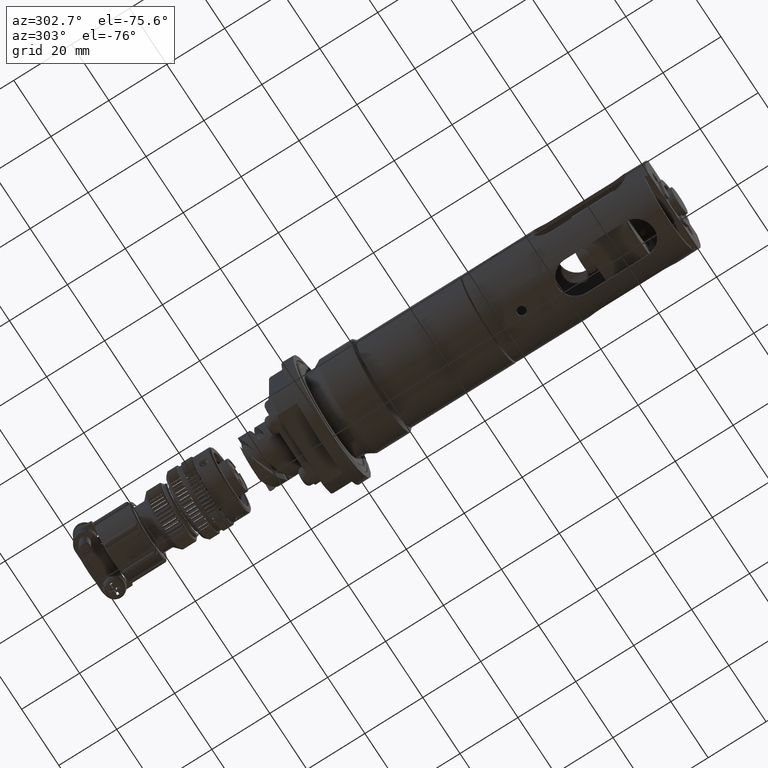
[diagram: clean part render]
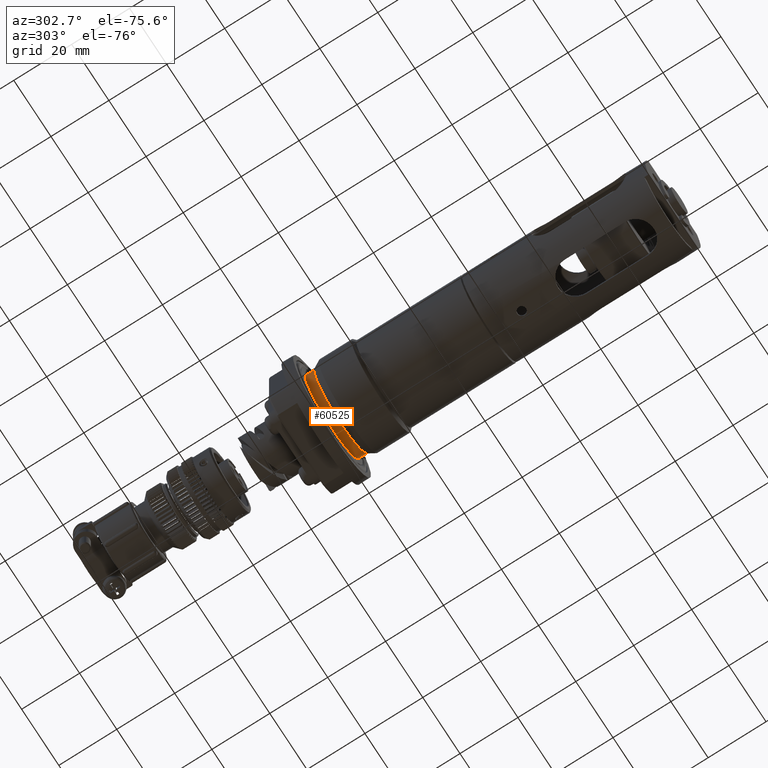
[diagram: same view with one face highlighted and labeled with its STEP entity id]
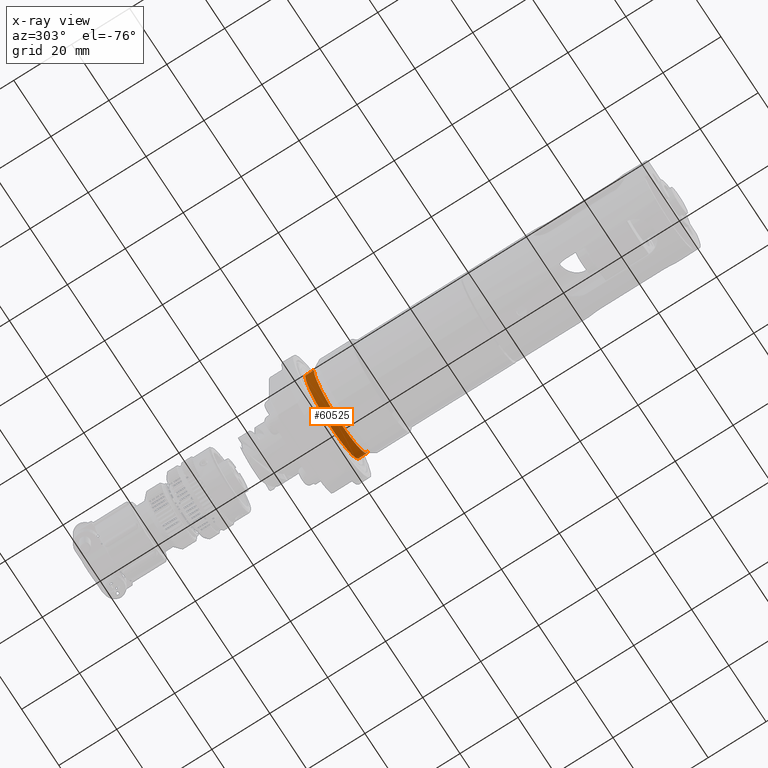
[diagram: x-ray of the same camera — body ghosted, the highlighted face saturated]
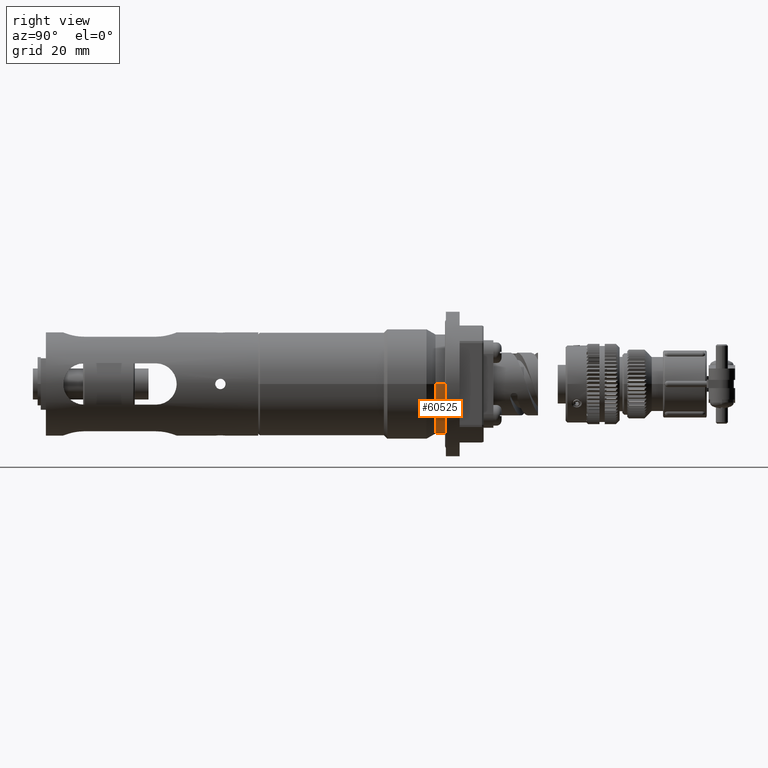
[diagram: same view with one face highlighted and labeled with its STEP entity id]
A machine part, auxiliary view. The second image highlights one B-rep face of the part: STEP entity #60525.
The next image is the same camera in x-ray: the body ghosted, the highlighted face saturated — about 0% of this face is hidden behind the body in this view.
A second angle (right view) of the same face is appended — the face is thin or edge-on in the first view.
In plain terms, the highlighted cylindrical surface (partial cylindrical patch) has radius 14.5 mm, axis along (-0, 1, -0).
Its self-contained STEP definition (entity closure, byte-faithful):
#1571 = ORIENTED_EDGE ( 'NONE', *, *, #27008, .T. ) ;
#2324 = DIRECTION ( 'NONE',  ( -1.000000000000000000, -1.196361017915039486E-16, 0.0000000000000000000 ) ) ;
#3187 = AXIS2_PLACEMENT_3D ( 'NONE', #50082, #7180, #2324 ) ;
#7180 = DIRECTION ( 'NONE',  ( -1.224646799147350002E-16, 1.000000000000000000, -0.0000000000000000000 ) ) ;
#10364 = VECTOR ( 'NONE', #49204, 1000.000000000000000 ) ;
#12151 = LINE ( 'NONE', #49547, #10364 ) ;
#13101 = CARTESIAN_POINT ( 'NONE',  ( -14.49999999999999822, -3.000000000000004441, 1.867586368699713376E-15 ) ) ;
#13567 = CARTESIAN_POINT ( 'NONE',  ( -14.50000000000000000, 14.88581298024860189, 0.0000000000000000000 ) ) ;
#17470 = CIRCLE ( 'NONE', #37372, 14.50000000000000000 ) ;
#17749 = CARTESIAN_POINT ( 'NONE',  ( 14.50000000000000178, -3.000000000000000888, 0.0000000000000000000 ) ) ;
#19642 = EDGE_CURVE ( 'NONE', #58450, #42931, #45147, .T. ) ;
#20459 = DIRECTION ( 'NONE',  ( -1.224646799147350002E-16, 1.000000000000000000, -0.0000000000000000000 ) ) ;
#24406 = ORIENTED_EDGE ( 'NONE', *, *, #19642, .T. ) ;
#27008 = EDGE_CURVE ( 'NONE', #62585, #53979, #17470, .T. ) ;
#33818 = CARTESIAN_POINT ( 'NONE',  ( -14.49999999999999822, 0.0000000000000000000, 0.0000000000000000000 ) ) ;
#37080 = DIRECTION ( 'NONE',  ( -1.000000000000000000, -1.196361017915039486E-16, 0.0000000000000000000 ) ) ;
#37372 = AXIS2_PLACEMENT_3D ( 'NONE', #67284, #62129, #43919 ) ;
#39900 = LINE ( 'NONE', #13567, #40669 ) ;
#40669 = VECTOR ( 'NONE', #45781, 1000.000000000000000 ) ;
#41771 = EDGE_LOOP ( 'NONE', ( #45648, #24406, #53704, #1571 ) ) ;
#42931 = VERTEX_POINT ( 'NONE', #13101 ) ;
#43212 = EDGE_CURVE ( 'NONE', #58450, #53979, #12151, .T. ) ;
#43919 = DIRECTION ( 'NONE',  ( 0.0000000000000000000, 0.0000000000000000000, 1.000000000000000000 ) ) ;
#44903 = FACE_OUTER_BOUND ( 'NONE', #41771, .T. ) ;
#45147 = CIRCLE ( 'NONE', #56188, 14.50000000000000000 ) ;
#45648 = ORIENTED_EDGE ( 'NONE', *, *, #43212, .F. ) ;
#45781 = DIRECTION ( 'NONE',  ( -1.224646799147350002E-16, 1.000000000000000000, -0.0000000000000000000 ) ) ;
#47553 = CARTESIAN_POINT ( 'NONE',  ( 14.50000000000000178, 0.0000000000000000000, 1.775737858763662015E-15 ) ) ;
#49204 = DIRECTION ( 'NONE',  ( -1.224646799147350002E-16, 1.000000000000000000, -0.0000000000000000000 ) ) ;
#49547 = CARTESIAN_POINT ( 'NONE',  ( 14.50000000000000000, 14.88581298024860367, 1.775737858763662015E-15 ) ) ;
#50082 = CARTESIAN_POINT ( 'NONE',  ( 0.0000000000000000000, 14.88581298024860189, 0.0000000000000000000 ) ) ;
#53704 = ORIENTED_EDGE ( 'NONE', *, *, #68322, .T. ) ;
#53979 = VERTEX_POINT ( 'NONE', #47553 ) ;
#56188 = AXIS2_PLACEMENT_3D ( 'NONE', #67475, #20459, #37080 ) ;
#58450 = VERTEX_POINT ( 'NONE', #17749 ) ;
#60525 = ADVANCED_FACE ( 'NONE', ( #44903 ), #61475, .T. ) ;
#61475 = CYLINDRICAL_SURFACE ( 'NONE', #3187, 14.50000000000000000 ) ;
#62129 = DIRECTION ( 'NONE',  ( -0.0000000000000000000, -1.000000000000000000, -0.0000000000000000000 ) ) ;
#62585 = VERTEX_POINT ( 'NONE', #33818 ) ;
#67284 = CARTESIAN_POINT ( 'NONE',  ( 1.822986321896752483E-15, 0.0000000000000000000, 0.0000000000000000000 ) ) ;
#67475 = CARTESIAN_POINT ( 'NONE',  ( 2.190380361640957927E-15, -3.000000000000002665, 0.0000000000000000000 ) ) ;
#68322 = EDGE_CURVE ( 'NONE', #42931, #62585, #39900, .T. ) ;